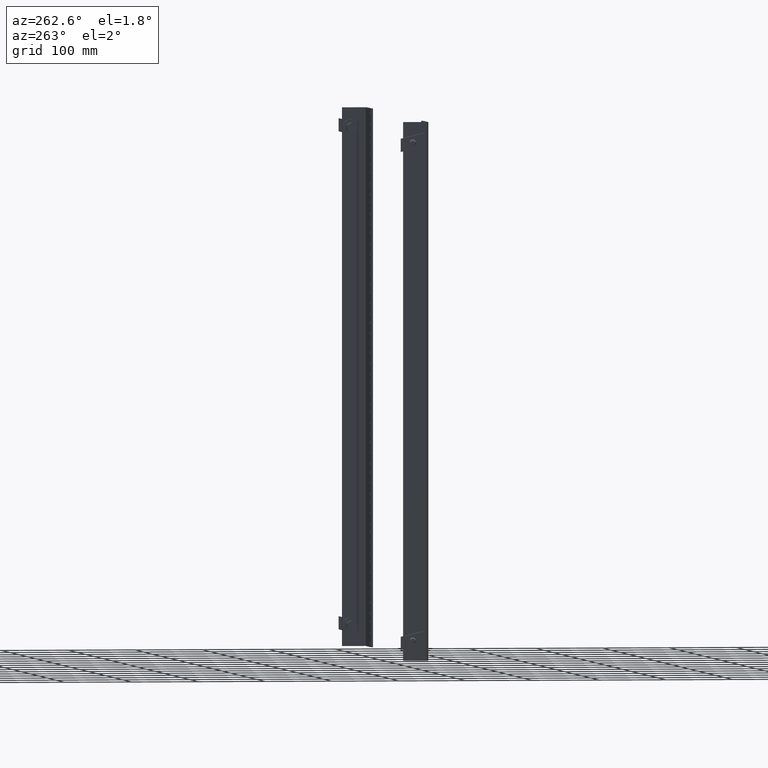
[diagram: clean part render]
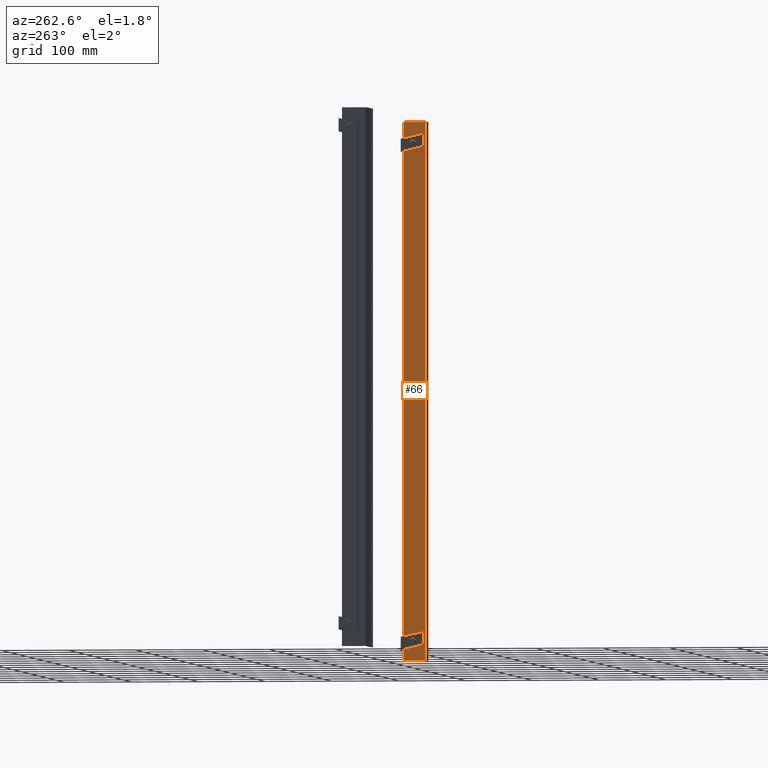
[diagram: same view with one face highlighted and labeled with its STEP entity id]
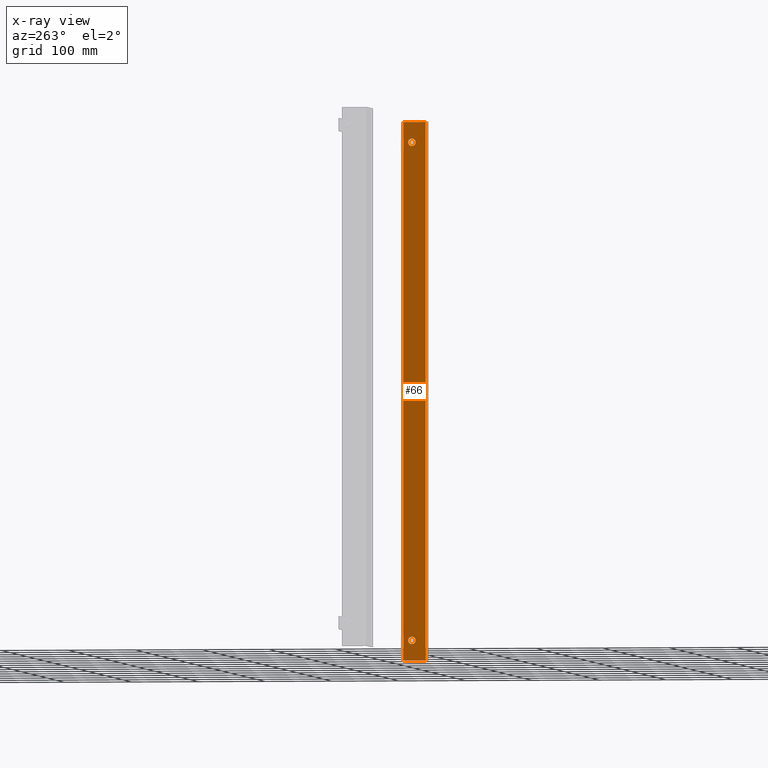
[diagram: x-ray of the same camera — body ghosted, the highlighted face saturated]
A machine part, auxiliary view. The second image highlights one B-rep face of the part: STEP entity #66.
The next image is the same camera in x-ray: the body ghosted, the highlighted face saturated — about 0% of this face is hidden behind the body in this view.
In plain terms, the highlighted planar face has unit normal (-1, 0, -0).
Its self-contained STEP definition (entity closure, byte-faithful):
#66 = ADVANCED_FACE ( 'NONE', ( #2223, #6299, #10431 ), #10307, .T. ) ;
#500 = CARTESIAN_POINT ( 'NONE',  ( -26.58999999999999631, 0.9999999999999987788, -14.56299999999999706 ) ) ;
#642 = VECTOR ( 'NONE', #12069, 39.37007874015748143 ) ;
#937 = ORIENTED_EDGE ( 'NONE', *, *, #12725, .F. ) ;
#1046 = ORIENTED_EDGE ( 'NONE', *, *, #2548, .T. ) ;
#1179 = CARTESIAN_POINT ( 'NONE',  ( -26.58999999999999631, 1.218499999999998806, -14.56299999999999706 ) ) ;
#1308 = CARTESIAN_POINT ( 'NONE',  ( -26.59000000000000341, 0.1105000000000007226, -15.74999999999999645 ) ) ;
#1388 = CARTESIAN_POINT ( 'NONE',  ( -26.58999999999999631, 0.7814999999999987512, -14.56299999999999706 ) ) ;
#1405 = EDGE_CURVE ( 'NONE', #11608, #10755, #5859, .T. ) ;
#1570 = CARTESIAN_POINT ( 'NONE',  ( -26.58999999999999631, 0.9999999999999987788, -14.56299999999999706 ) ) ;
#1793 = VERTEX_POINT ( 'NONE', #12070 ) ;
#2223 = FACE_OUTER_BOUND ( 'NONE', #9259, .T. ) ;
#2261 = DIRECTION ( 'NONE',  ( 4.447480477593413555E-48, -5.378950188740039876E-17, -1.000000000000000000 ) ) ;
#2384 = DIRECTION ( 'NONE',  ( 0.0000000000000000000, 1.000000000000000000, 0.0000000000000000000 ) ) ;
#2468 = CARTESIAN_POINT ( 'NONE',  ( -26.58999999999999631, 1.000000000000000444, 14.56300000000000594 ) ) ;
#2505 = LINE ( 'NONE', #6527, #12209 ) ;
#2548 = EDGE_CURVE ( 'NONE', #10755, #11608, #6531, .T. ) ;
#2559 = EDGE_CURVE ( 'NONE', #4962, #1793, #10769, .T. ) ;
#2588 = CARTESIAN_POINT ( 'NONE',  ( -26.58999999999999631, 1.218500000000000361, 14.56300000000000594 ) ) ;
#2622 = DIRECTION ( 'NONE',  ( 1.000000000000000000, -1.444990668042544132E-16, 7.772532826595041444E-33 ) ) ;
#2711 = AXIS2_PLACEMENT_3D ( 'NONE', #500, #5143, #12596 ) ;
#2727 = DIRECTION ( 'NONE',  ( 0.0000000000000000000, 1.000000000000000000, 0.0000000000000000000 ) ) ;
#2787 = CIRCLE ( 'NONE', #10970, 0.2184999999999999998 ) ;
#3448 = ORIENTED_EDGE ( 'NONE', *, *, #2559, .T. ) ;
#3691 = DIRECTION ( 'NONE',  ( -8.326672684688670355E-17, -1.000000000000000000, 5.378950188740039876E-17 ) ) ;
#4739 = VERTEX_POINT ( 'NONE', #11869 ) ;
#4951 = EDGE_CURVE ( 'NONE', #12240, #1793, #8059, .T. ) ;
#4962 = VERTEX_POINT ( 'NONE', #7012 ) ;
#5067 = EDGE_LOOP ( 'NONE', ( #1046, #8538 ) ) ;
#5143 = DIRECTION ( 'NONE',  ( 1.000000000000000000, -1.444990668042544132E-16, 7.772532826595041444E-33 ) ) ;
#5403 = EDGE_LOOP ( 'NONE', ( #12261, #10195 ) ) ;
#5447 = DIRECTION ( 'NONE',  ( -1.000000000000000000, 1.444990668042544132E-16, -7.772532826595041444E-33 ) ) ;
#5859 = CIRCLE ( 'NONE', #2711, 0.2184999999999999998 ) ;
#6020 = CARTESIAN_POINT ( 'NONE',  ( -26.59000000000000341, 0.1850000000000024403, 15.75000000000000533 ) ) ;
#6022 = DIRECTION ( 'NONE',  ( 1.000000000000000000, -1.444990668042544132E-16, 7.772532826595041444E-33 ) ) ;
#6233 = ORIENTED_EDGE ( 'NONE', *, *, #4951, .F. ) ;
#6268 = EDGE_CURVE ( 'NONE', #4739, #12240, #9169, .T. ) ;
#6277 = VECTOR ( 'NONE', #2261, 39.37007874015748143 ) ;
#6299 = FACE_BOUND ( 'NONE', #5067, .T. ) ;
#6375 = VERTEX_POINT ( 'NONE', #2588 ) ;
#6527 = CARTESIAN_POINT ( 'NONE',  ( -26.59000000000000341, 0.1250000000000024147, 15.75000000000000533 ) ) ;
#6531 = CIRCLE ( 'NONE', #11985, 0.2184999999999999998 ) ;
#6632 = CARTESIAN_POINT ( 'NONE',  ( -26.59000000000000341, 1.500000000000002220, 15.75000000000000533 ) ) ;
#6727 = AXIS2_PLACEMENT_3D ( 'NONE', #2468, #6022, #2727 ) ;
#7012 = CARTESIAN_POINT ( 'NONE',  ( -26.59000000000000341, 1.500000000000002220, 15.75000000000000533 ) ) ;
#7331 = EDGE_CURVE ( 'NONE', #11093, #6375, #7360, .T. ) ;
#7360 = CIRCLE ( 'NONE', #6727, 0.2184999999999999998 ) ;
#7385 = CARTESIAN_POINT ( 'NONE',  ( -26.58999999999999631, 1.000000000000000444, 14.56300000000000594 ) ) ;
#7994 = VECTOR ( 'NONE', #10515, 39.37007874015748143 ) ;
#8059 = LINE ( 'NONE', #10217, #642 ) ;
#8183 = EDGE_CURVE ( 'NONE', #6375, #11093, #2787, .T. ) ;
#8538 = ORIENTED_EDGE ( 'NONE', *, *, #1405, .T. ) ;
#8818 = ORIENTED_EDGE ( 'NONE', *, *, #6268, .F. ) ;
#9169 = LINE ( 'NONE', #6020, #6277 ) ;
#9259 = EDGE_LOOP ( 'NONE', ( #937, #3448, #6233, #8818 ) ) ;
#9448 = DIRECTION ( 'NONE',  ( 1.444990668042544132E-16, 1.000000000000000000, -5.378950188740039876E-17 ) ) ;
#10195 = ORIENTED_EDGE ( 'NONE', *, *, #7331, .T. ) ;
#10217 = CARTESIAN_POINT ( 'NONE',  ( -26.59000000000000341, 0.1250000000000007216, -15.74999999999999645 ) ) ;
#10307 = PLANE ( 'NONE',  #10644 ) ;
#10431 = FACE_BOUND ( 'NONE', #5403, .T. ) ;
#10515 = DIRECTION ( 'NONE',  ( 4.447480477593413555E-48, -5.378950188740039876E-17, -1.000000000000000000 ) ) ;
#10644 = AXIS2_PLACEMENT_3D ( 'NONE', #1308, #5447, #9448 ) ;
#10755 = VERTEX_POINT ( 'NONE', #1179 ) ;
#10769 = LINE ( 'NONE', #6632, #7994 ) ;
#10970 = AXIS2_PLACEMENT_3D ( 'NONE', #7385, #12504, #2384 ) ;
#11093 = VERTEX_POINT ( 'NONE', #11946 ) ;
#11608 = VERTEX_POINT ( 'NONE', #1388 ) ;
#11869 = CARTESIAN_POINT ( 'NONE',  ( -26.59000000000000341, 0.1850000000000024403, 15.75000000000000533 ) ) ;
#11946 = CARTESIAN_POINT ( 'NONE',  ( -26.58999999999999631, 0.7815000000000004166, 14.56300000000000594 ) ) ;
#11985 = AXIS2_PLACEMENT_3D ( 'NONE', #1570, #2622, #12742 ) ;
#12069 = DIRECTION ( 'NONE',  ( 8.326672684688670355E-17, 1.000000000000000000, -5.378950188740039876E-17 ) ) ;
#12070 = CARTESIAN_POINT ( 'NONE',  ( -26.59000000000000341, 1.500000000000000666, -15.74999999999999645 ) ) ;
#12209 = VECTOR ( 'NONE', #3691, 39.37007874015748143 ) ;
#12240 = VERTEX_POINT ( 'NONE', #12394 ) ;
#12261 = ORIENTED_EDGE ( 'NONE', *, *, #8183, .T. ) ;
#12394 = CARTESIAN_POINT ( 'NONE',  ( -26.59000000000000341, 0.1850000000000007194, -15.74999999999999645 ) ) ;
#12504 = DIRECTION ( 'NONE',  ( 1.000000000000000000, -1.444990668042544132E-16, 7.772532826595041444E-33 ) ) ;
#12596 = DIRECTION ( 'NONE',  ( 0.0000000000000000000, 1.000000000000000000, 0.0000000000000000000 ) ) ;
#12725 = EDGE_CURVE ( 'NONE', #4962, #4739, #2505, .T. ) ;
#12742 = DIRECTION ( 'NONE',  ( 0.0000000000000000000, 1.000000000000000000, 0.0000000000000000000 ) ) ;